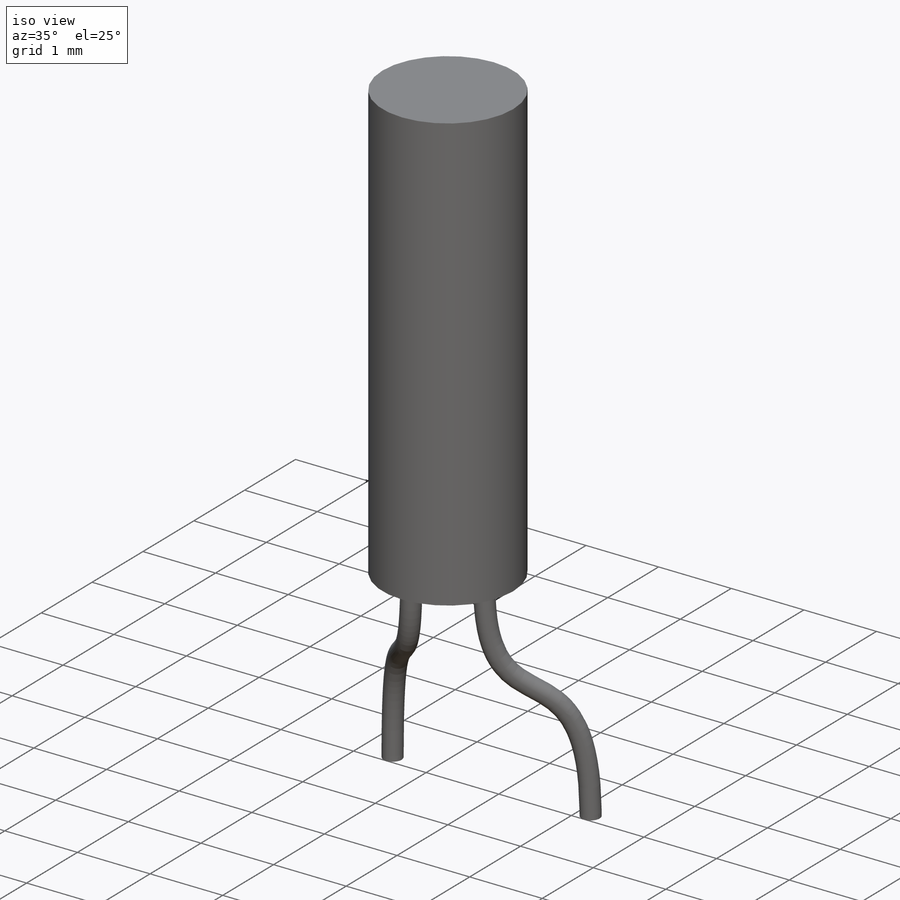
[diagram: iso view]
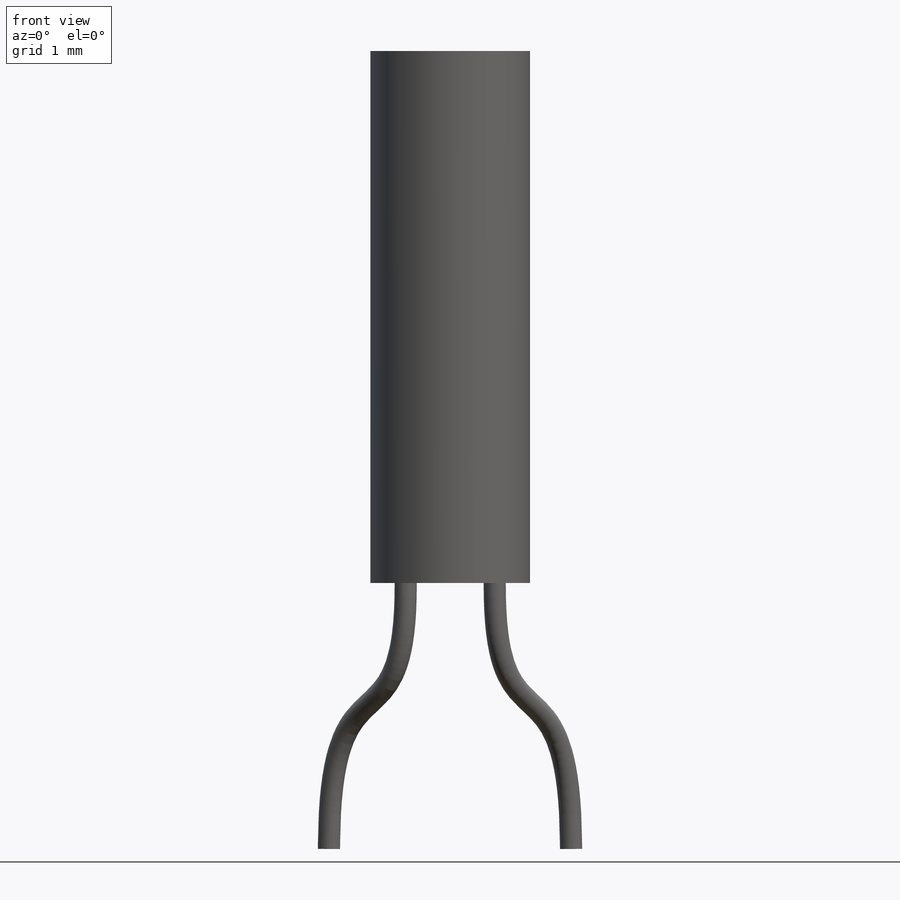
[diagram: front view]
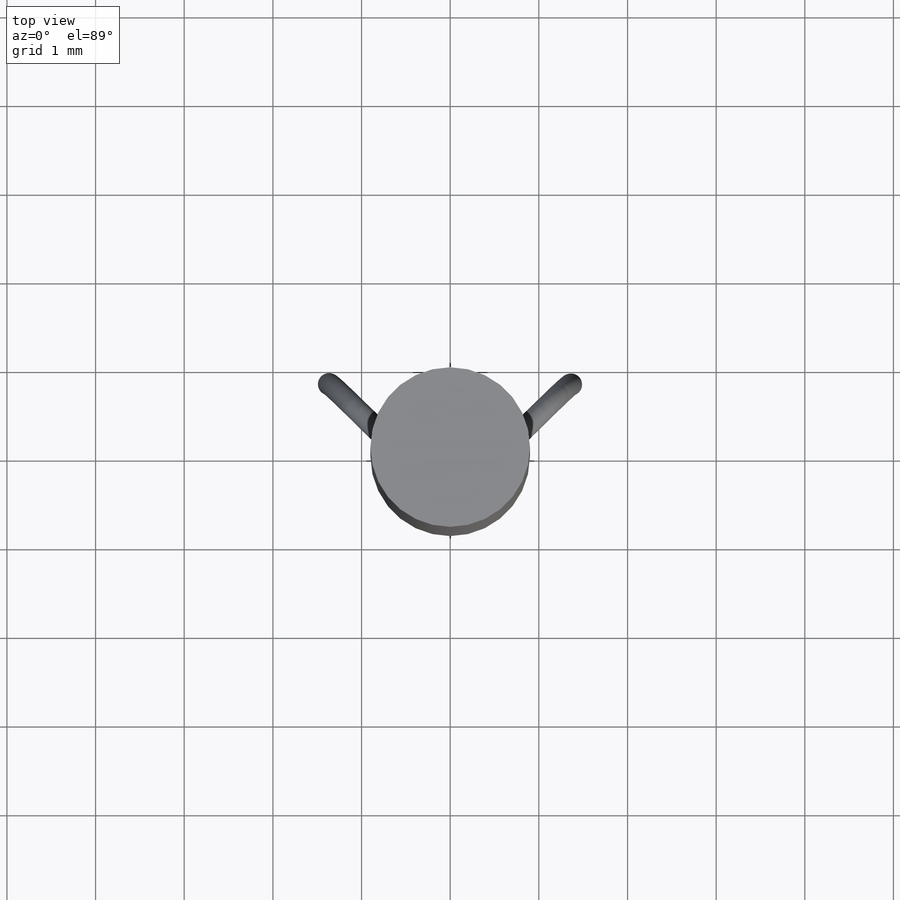
[diagram: top view]
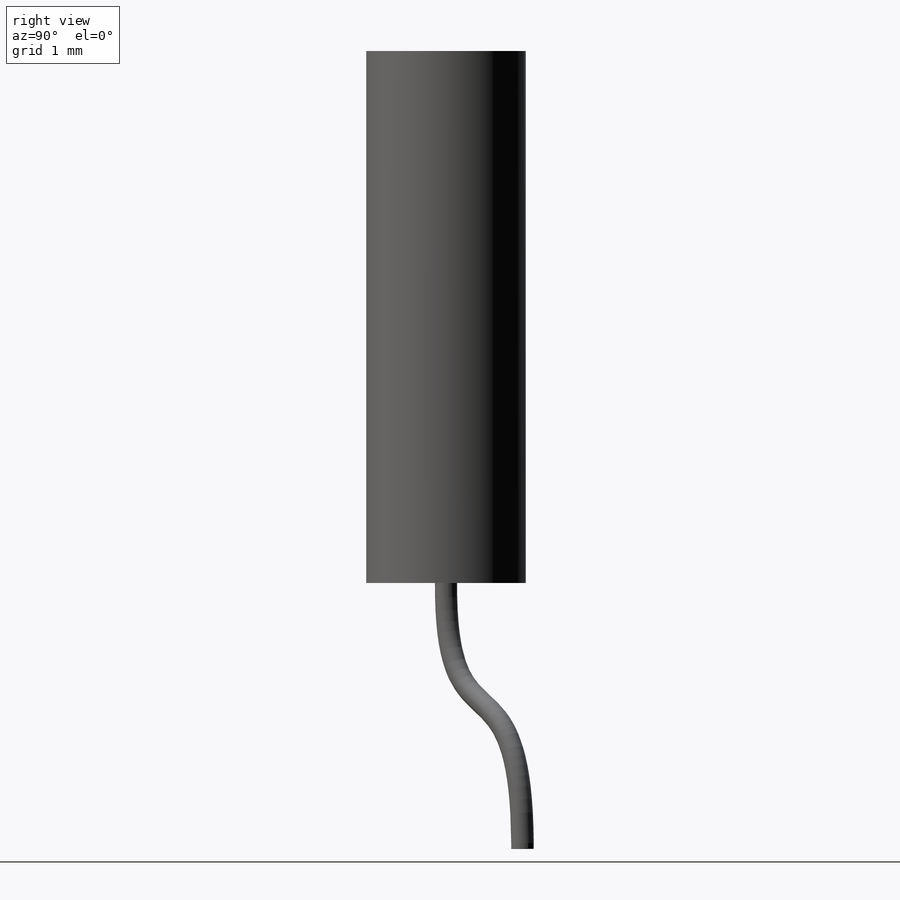
[diagram: right view]
SOLIDWORKS PART (.sldprt)
format: sldprt  version: not decoded by parser v0  size: 196,608 bytes
history: native  units: mm
features: sketch x5, plane x4, sweep x2, material x1, extrude x1 (+13 scaffold rows collapsed)
feature tree (26):
  scaffold x13  (default folders/planes/origin — collapsed)
  material  "Material <not specified>"
  sketch  "Sketch1"  dims[D1=1.8mm]
  extrude  "Boss-Extrude1"  Depth=6mm
  plane  "A"
  plane  "B"
  plane  "A1"  Offset=0.355mm Ax-A=0deg
  plane  "B1"  Offset=0.355mm Ax-B=0deg
  sketch  "Sketch4"  dims[D1=3.0mm]
  sketch  "Sketch6"
  sketch  "Sketch7"  dims[D1=0.25mm]
  sketch  "Sketch8"  dims[D1=0.25mm]
  sweep  "Sweep1"
  sweep  "Sweep2"
decode coverage: 5 of 8 modeling features carry decoded parameters
note: suppression state not decoded; provenance and decode notes live in map.json
